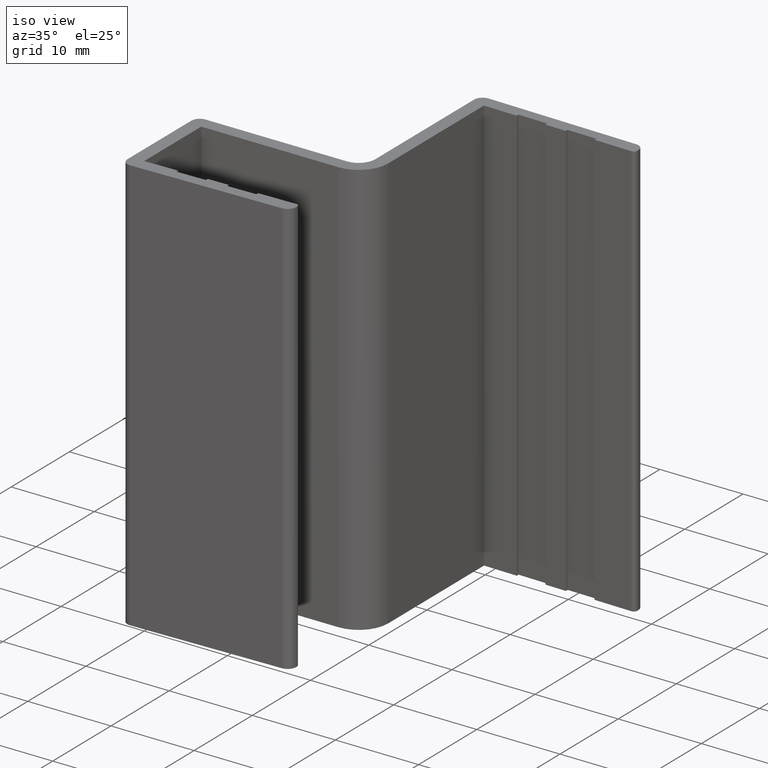
[diagram: clean part render]
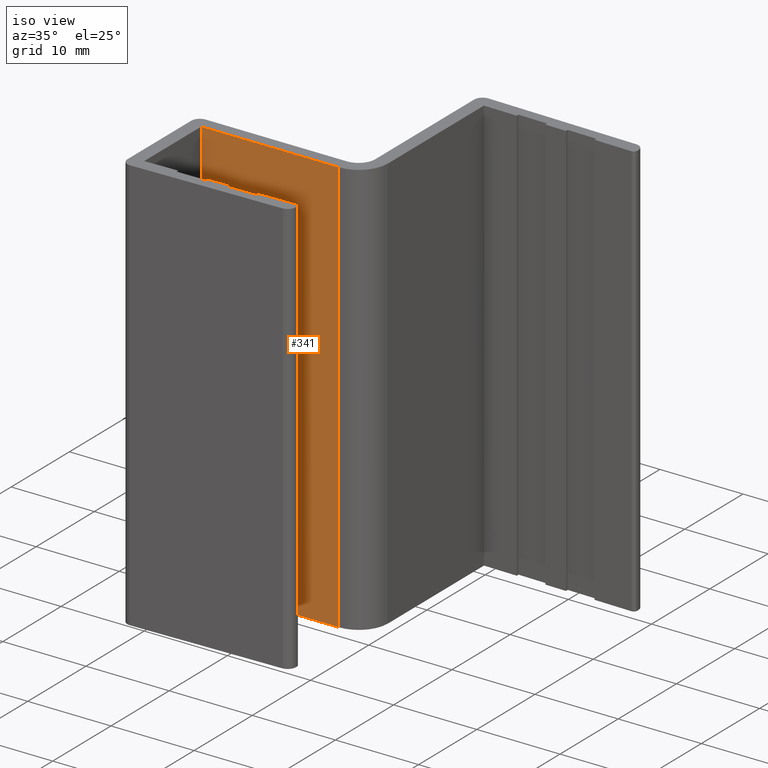
[diagram: same view with one face highlighted and labeled with its STEP entity id]
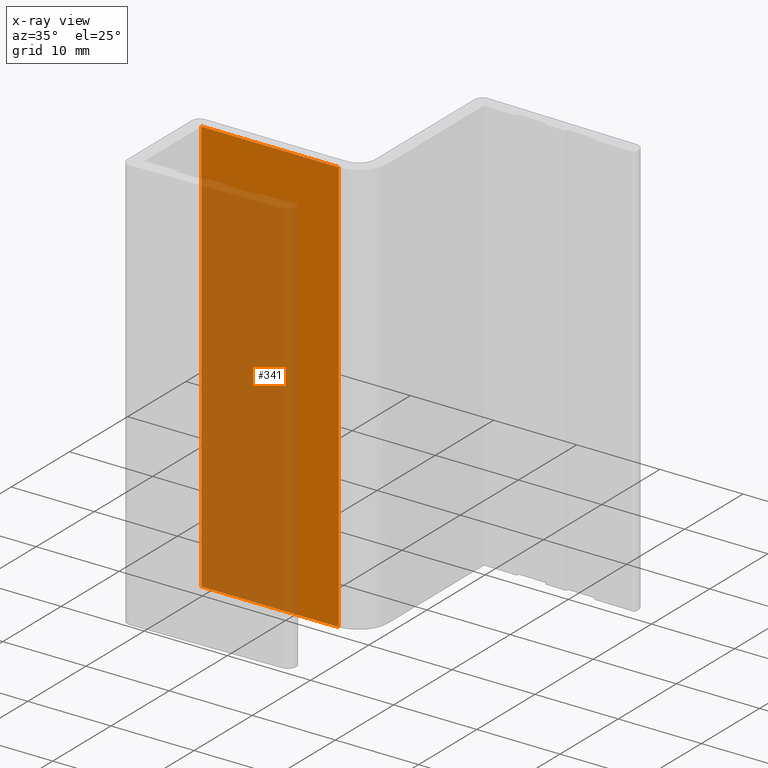
[diagram: x-ray of the same camera — body ghosted, the highlighted face saturated]
A machine part, iso view. The second image highlights one B-rep face of the part: STEP entity #341.
The next image is the same camera in x-ray: the body ghosted, the highlighted face saturated — about 63% of this face is hidden behind the body in this view.
In plain terms, the highlighted planar face has unit normal (0, 1, 0).
Its self-contained STEP definition (entity closure, byte-faithful):
#12 = CARTESIAN_POINT ( 'NONE',  ( 0.0000000000000000000, 9.800000000000000700, 0.0000000000000000000 ) ) ;
#103 = LINE ( 'NONE', #181, #339 ) ;
#155 = CARTESIAN_POINT ( 'NONE',  ( 0.0000000000000000000, 9.800000000000000700, 0.0000000000000000000 ) ) ;
#178 = ORIENTED_EDGE ( 'NONE', *, *, #810, .T. ) ;
#181 = CARTESIAN_POINT ( 'NONE',  ( 0.0000000000000000000, 9.800000000000000700, 50.00000000000000000 ) ) ;
#206 = EDGE_LOOP ( 'NONE', ( #590, #178, #920, #593 ) ) ;
#245 = DIRECTION ( 'NONE',  ( -0.0000000000000000000, -0.0000000000000000000, -1.000000000000000000 ) ) ;
#295 = FACE_OUTER_BOUND ( 'NONE', #206, .T. ) ;
#309 = VECTOR ( 'NONE', #808, 1000.000000000000000 ) ;
#339 = VECTOR ( 'NONE', #245, 1000.000000000000000 ) ;
#341 = ADVANCED_FACE ( 'NONE', ( #295 ), #1308, .F. ) ;
#435 = VERTEX_POINT ( 'NONE', #880 ) ;
#483 = CARTESIAN_POINT ( 'NONE',  ( 16.50000000000000000, 9.800000000000000700, 50.00000000000000000 ) ) ;
#590 = ORIENTED_EDGE ( 'NONE', *, *, #1169, .T. ) ;
#593 = ORIENTED_EDGE ( 'NONE', *, *, #1338, .T. ) ;
#642 = AXIS2_PLACEMENT_3D ( 'NONE', #1295, #1312, #1315 ) ;
#646 = LINE ( 'NONE', #851, #1172 ) ;
#668 = VERTEX_POINT ( 'NONE', #845 ) ;
#785 = DIRECTION ( 'NONE',  ( 1.000000000000000000, 0.0000000000000000000, 0.0000000000000000000 ) ) ;
#807 = LINE ( 'NONE', #12, #1306 ) ;
#808 = DIRECTION ( 'NONE',  ( -0.0000000000000000000, -0.0000000000000000000, 1.000000000000000000 ) ) ;
#810 = EDGE_CURVE ( 'NONE', #1245, #668, #922, .T. ) ;
#845 = CARTESIAN_POINT ( 'NONE',  ( 16.50000000000000000, 9.800000000000000700, 50.00000000000000000 ) ) ;
#851 = CARTESIAN_POINT ( 'NONE',  ( 0.0000000000000000000, 9.800000000000000700, 50.00000000000000000 ) ) ;
#880 = CARTESIAN_POINT ( 'NONE',  ( 0.0000000000000000000, 9.800000000000000700, 50.00000000000000000 ) ) ;
#920 = ORIENTED_EDGE ( 'NONE', *, *, #1011, .F. ) ;
#922 = LINE ( 'NONE', #483, #309 ) ;
#1010 = DIRECTION ( 'NONE',  ( 1.000000000000000000, 0.0000000000000000000, 0.0000000000000000000 ) ) ;
#1011 = EDGE_CURVE ( 'NONE', #435, #668, #646, .T. ) ;
#1151 = VERTEX_POINT ( 'NONE', #155 ) ;
#1169 = EDGE_CURVE ( 'NONE', #1151, #1245, #807, .T. ) ;
#1172 = VECTOR ( 'NONE', #785, 1000.000000000000000 ) ;
#1245 = VERTEX_POINT ( 'NONE', #1266 ) ;
#1266 = CARTESIAN_POINT ( 'NONE',  ( 16.50000000000000000, 9.800000000000000700, 0.0000000000000000000 ) ) ;
#1295 = CARTESIAN_POINT ( 'NONE',  ( 0.0000000000000000000, 9.800000000000000700, 50.00000000000000000 ) ) ;
#1306 = VECTOR ( 'NONE', #1010, 1000.000000000000000 ) ;
#1308 = PLANE ( 'NONE',  #642 ) ;
#1312 = DIRECTION ( 'NONE',  ( 0.0000000000000000000, 1.000000000000000000, 0.0000000000000000000 ) ) ;
#1315 = DIRECTION ( 'NONE',  ( 0.0000000000000000000, -0.0000000000000000000, 1.000000000000000000 ) ) ;
#1338 = EDGE_CURVE ( 'NONE', #435, #1151, #103, .T. ) ;